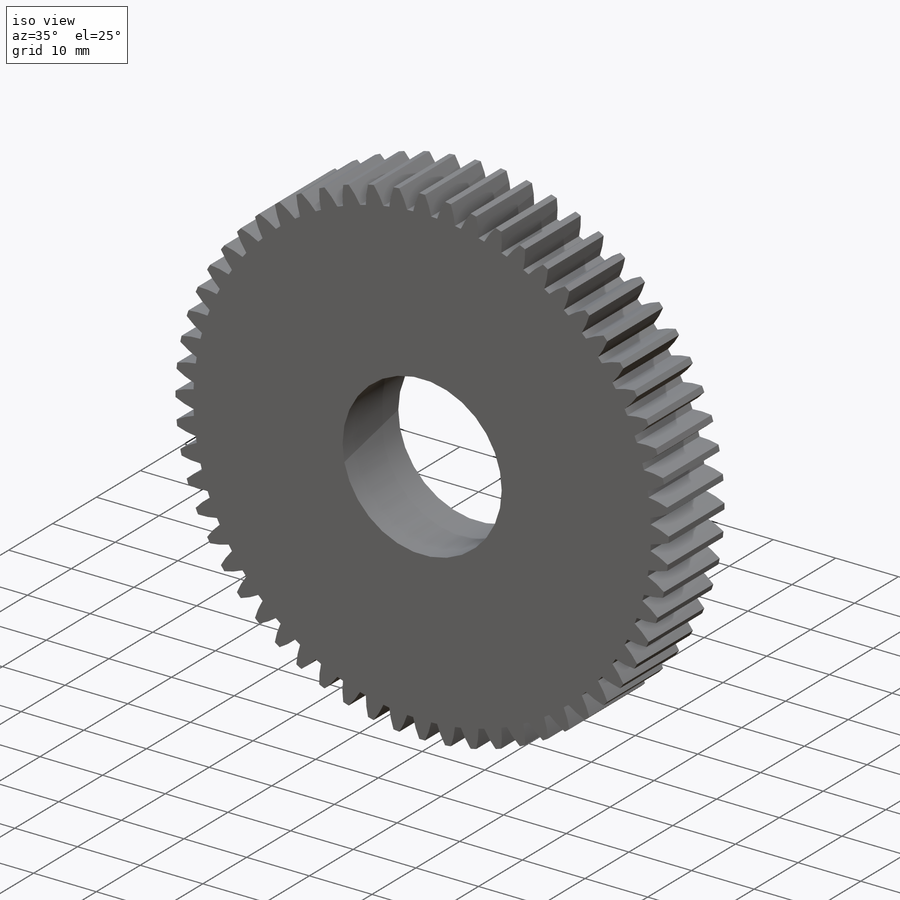
[diagram: iso view]
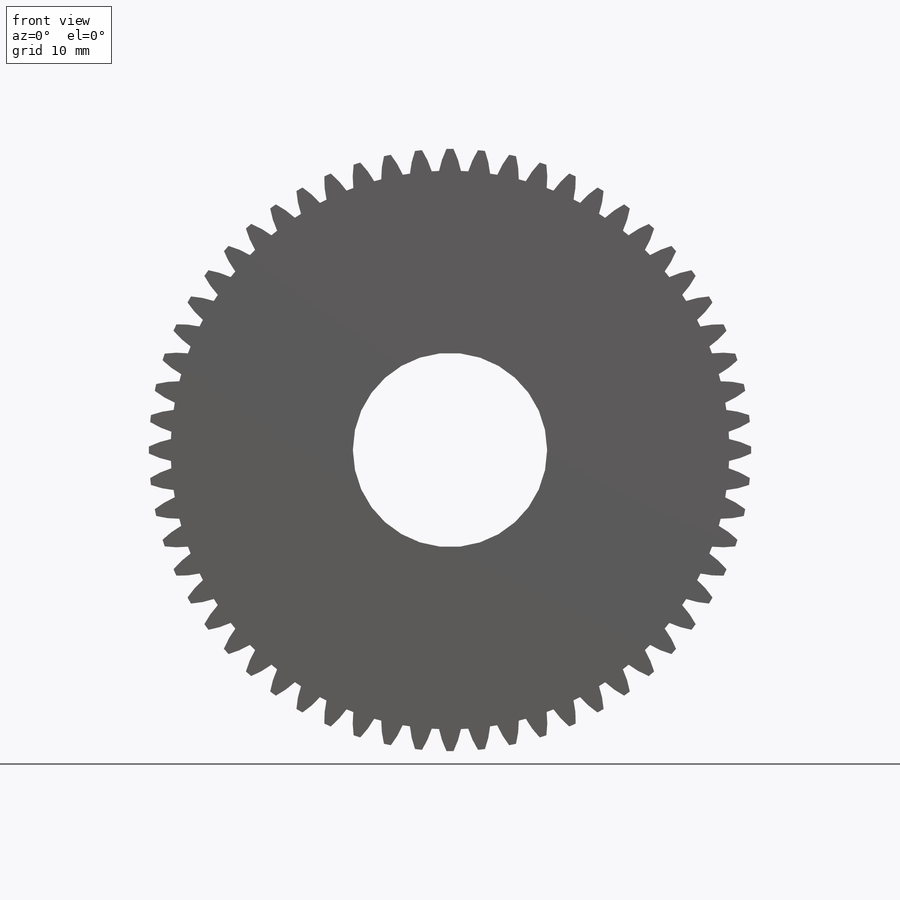
[diagram: front view]
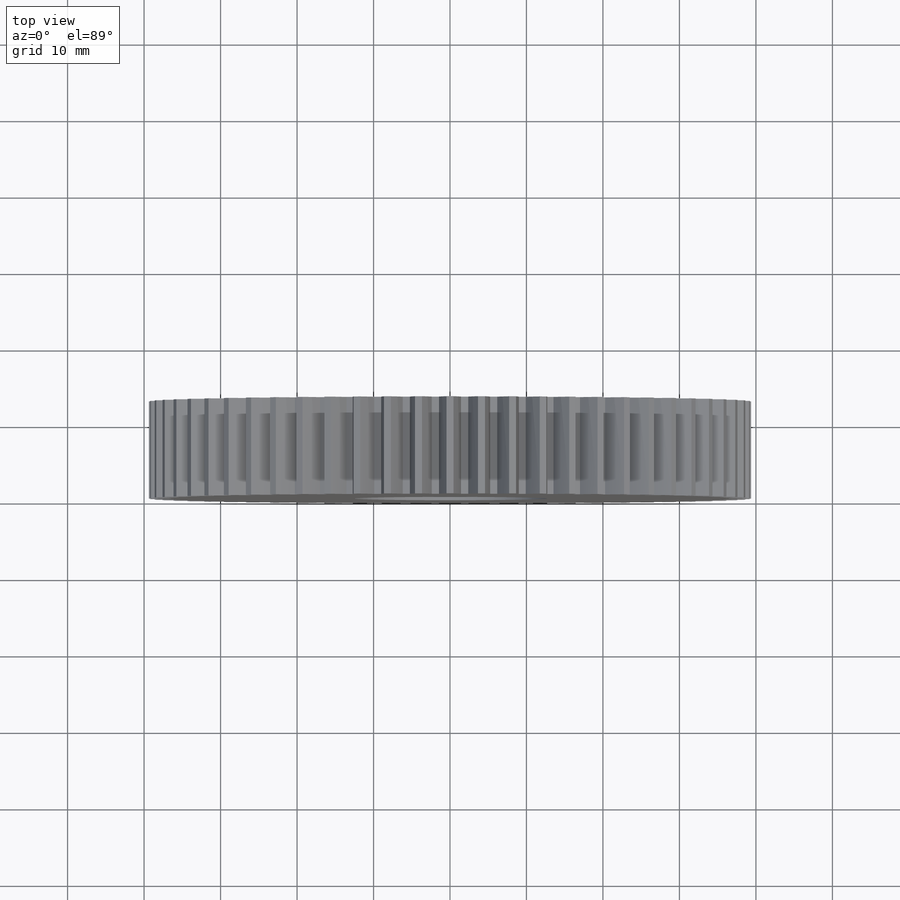
[diagram: top view]
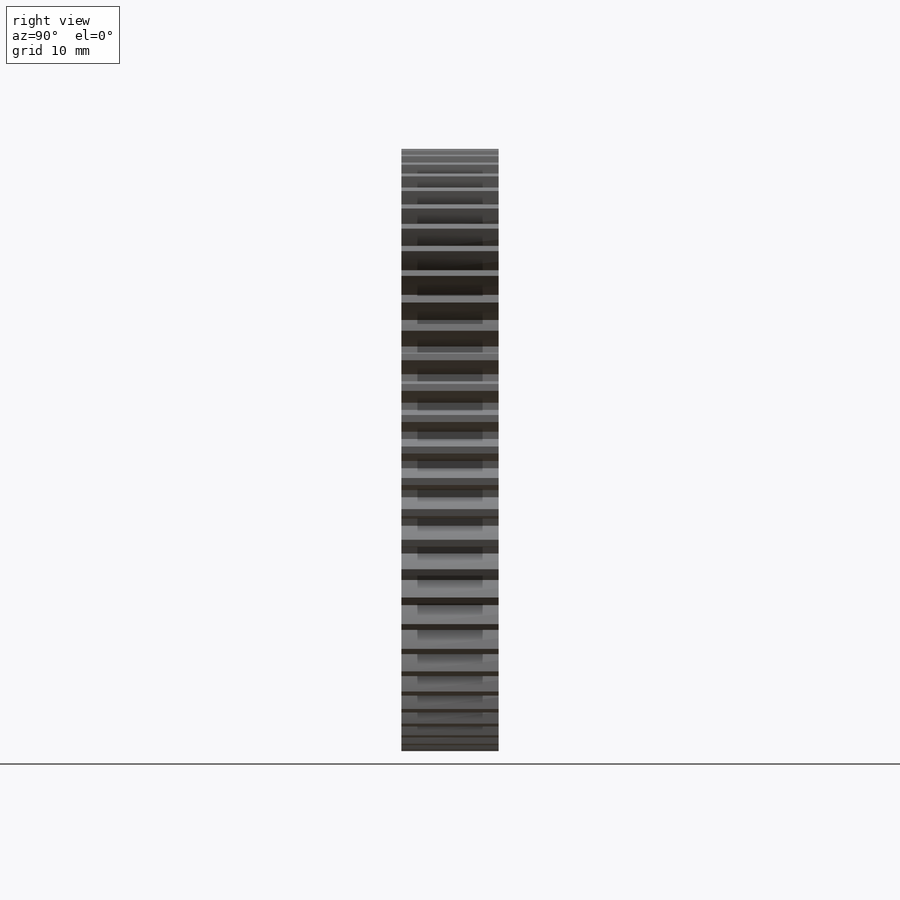
[diagram: right view]
SOLIDWORKS PART (.sldprt)
format: sldprt  version: not decoded by parser v0  size: 1,378,816 bytes
history: native  units: mm
features: sketch x65, cut_extrude x60, hole x2, material x1, extrude x1 (+16 scaffold rows collapsed)
feature tree (145):
  scaffold x16  (default folders/planes/origin — collapsed)
  material  "Material <not specified>"
  sketch  "Sketch1"
  extrude  "Boss-Extrude1"  Depth=12.699975mm
  sketch  "Sketch2"
  cut_extrude  "Cut-Extrude1"  Depth=12.699975mm
  sketch  "Sketch3"
  cut_extrude  "Cut-Extrude2"  Depth=12.699975mm
  sketch  "Sketch4"
  cut_extrude  "Cut-Extrude3"  Depth=12.699975mm
  sketch  "Sketch5"
  cut_extrude  "Cut-Extrude4"  Depth=12.699975mm
  sketch  "Sketch6"
  cut_extrude  "Cut-Extrude5"  Depth=12.699975mm
  sketch  "Sketch7"
  cut_extrude  "Cut-Extrude6"  Depth=12.699975mm
  sketch  "Sketch8"
  cut_extrude  "Cut-Extrude7"  Depth=12.699975mm
  sketch  "Sketch9"
  cut_extrude  "Cut-Extrude8"  Depth=12.699975mm
  sketch  "Sketch10"
  cut_extrude  "Cut-Extrude9"  Depth=12.699975mm
  sketch  "Sketch11"
  cut_extrude  "Cut-Extrude10"  Depth=12.699975mm
  sketch  "Sketch12"
  cut_extrude  "Cut-Extrude11"  Depth=12.699975mm
  sketch  "Sketch13"
  cut_extrude  "Cut-Extrude12"  Depth=12.699975mm
  sketch  "Sketch14"
  cut_extrude  "Cut-Extrude13"  Depth=12.699975mm
  sketch  "Sketch15"
  cut_extrude  "Cut-Extrude14"  Depth=12.699975mm
  sketch  "Sketch16"
  cut_extrude  "Cut-Extrude15"  Depth=12.699975mm
  sketch  "Sketch17"
  cut_extrude  "Cut-Extrude16"  Depth=12.699975mm
  sketch  "Sketch18"
  cut_extrude  "Cut-Extrude17"  Depth=12.699975mm
  sketch  "Sketch19"
  cut_extrude  "Cut-Extrude18"  Depth=12.699975mm
  sketch  "Sketch20"
  cut_extrude  "Cut-Extrude19"  Depth=12.699975mm
  sketch  "Sketch21"
  cut_extrude  "Cut-Extrude20"  Depth=12.699975mm
  sketch  "Sketch22"
  cut_extrude  "Cut-Extrude21"  Depth=12.699975mm
  sketch  "Sketch23"
  cut_extrude  "Cut-Extrude22"  Depth=12.699975mm
  sketch  "Sketch24"
  cut_extrude  "Cut-Extrude23"  Depth=12.699975mm
  sketch  "Sketch25"
  cut_extrude  "Cut-Extrude24"  Depth=12.699975mm
  sketch  "Sketch26"
  cut_extrude  "Cut-Extrude25"  Depth=12.699975mm
  sketch  "Sketch27"
  cut_extrude  "Cut-Extrude26"  Depth=12.699975mm
  sketch  "Sketch28"
  cut_extrude  "Cut-Extrude27"  Depth=12.699975mm
  sketch  "Sketch29"
  cut_extrude  "Cut-Extrude28"  Depth=12.699975mm
  sketch  "Sketch30"
  cut_extrude  "Cut-Extrude29"  Depth=12.699975mm
  sketch  "Sketch31"
  cut_extrude  "Cut-Extrude30"  Depth=12.699975mm
  sketch  "Sketch32"
  cut_extrude  "Cut-Extrude31"  Depth=12.699975mm
  sketch  "Sketch33"
  cut_extrude  "Cut-Extrude32"  Depth=12.699975mm
  sketch  "Sketch34"
  cut_extrude  "Cut-Extrude33"  Depth=12.699975mm
  sketch  "Sketch35"
  cut_extrude  "Cut-Extrude34"  Depth=12.699975mm
  sketch  "Sketch36"
  cut_extrude  "Cut-Extrude35"  Depth=12.699975mm
  sketch  "Sketch37"
  cut_extrude  "Cut-Extrude36"  Depth=12.699975mm
  sketch  "Sketch38"
  cut_extrude  "Cut-Extrude37"  Depth=12.699975mm
  sketch  "Sketch39"
  cut_extrude  "Cut-Extrude38"  Depth=12.699975mm
  sketch  "Sketch40"
  cut_extrude  "Cut-Extrude39"  Depth=12.699975mm
  sketch  "Sketch41"
  cut_extrude  "Cut-Extrude40"  Depth=12.699975mm
  sketch  "Sketch42"
  cut_extrude  "Cut-Extrude41"  Depth=12.699975mm
  sketch  "Sketch43"
  cut_extrude  "Cut-Extrude42"  Depth=12.699975mm
  sketch  "Sketch44"
  cut_extrude  "Cut-Extrude43"  Depth=12.699975mm
  sketch  "Sketch45"
  cut_extrude  "Cut-Extrude44"  Depth=12.699975mm
  sketch  "Sketch46"
  cut_extrude  "Cut-Extrude45"  Depth=12.699975mm
  sketch  "Sketch47"
  cut_extrude  "Cut-Extrude46"  Depth=12.699975mm
  sketch  "Sketch48"
  cut_extrude  "Cut-Extrude47"  Depth=12.699975mm
  sketch  "Sketch49"
  cut_extrude  "Cut-Extrude48"  Depth=12.699975mm
  sketch  "Sketch50"
  cut_extrude  "Cut-Extrude49"  Depth=12.699975mm
  sketch  "Sketch51"
  cut_extrude  "Cut-Extrude50"  Depth=12.699975mm
  sketch  "Sketch52"
  cut_extrude  "Cut-Extrude51"  Depth=12.699975mm
  sketch  "Sketch53"
  cut_extrude  "Cut-Extrude52"  Depth=12.699975mm
  sketch  "Sketch54"
  cut_extrude  "Cut-Extrude53"  Depth=12.699975mm
  sketch  "Sketch55"
  cut_extrude  "Cut-Extrude54"  Depth=12.699975mm
  sketch  "Sketch56"
  cut_extrude  "Cut-Extrude55"  Depth=12.699975mm
  sketch  "Sketch57"
  cut_extrude  "Cut-Extrude56"  Depth=12.699975mm
  sketch  "Sketch58"
  cut_extrude  "Cut-Extrude57"  Depth=12.699975mm
  sketch  "Sketch59"
  cut_extrude  "Cut-Extrude58"  Depth=12.699975mm
  sketch  "Sketch60"
  cut_extrude  "Cut-Extrude59"  Depth=12.699975mm
  sketch  "Sketch61"
  cut_extrude  "Cut-Extrude60"  Depth=12.699975mm
  hole  "Hole1"  Diameter=25.4mm Depth=12.699975mm
  sketch  "Sketch64"
  sketch  "Sketch63"  dims[Diameter=25.4mm Depth=~12.699975mm]
  hole  "#10 Clearance Hole1"  Diameter=5.1054mm Depth=38.099975mm
  sketch  "Sketch65"
  sketch  "Sketch66"  dims[Thru Hole Dia.=5.1054mm Thru Hole Depth=~38.099975mm]
decode coverage: 65 of 128 modeling features carry decoded parameters
note: ~ marks probable driven/reference dimensions
note: suppression state not decoded; provenance and decode notes live in map.json
